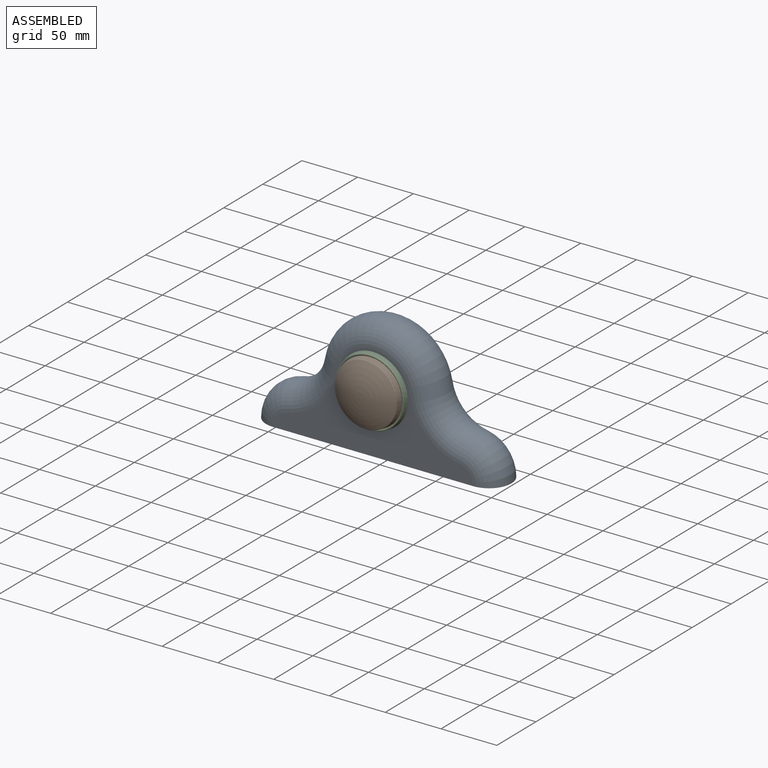
[diagram: assembled view]
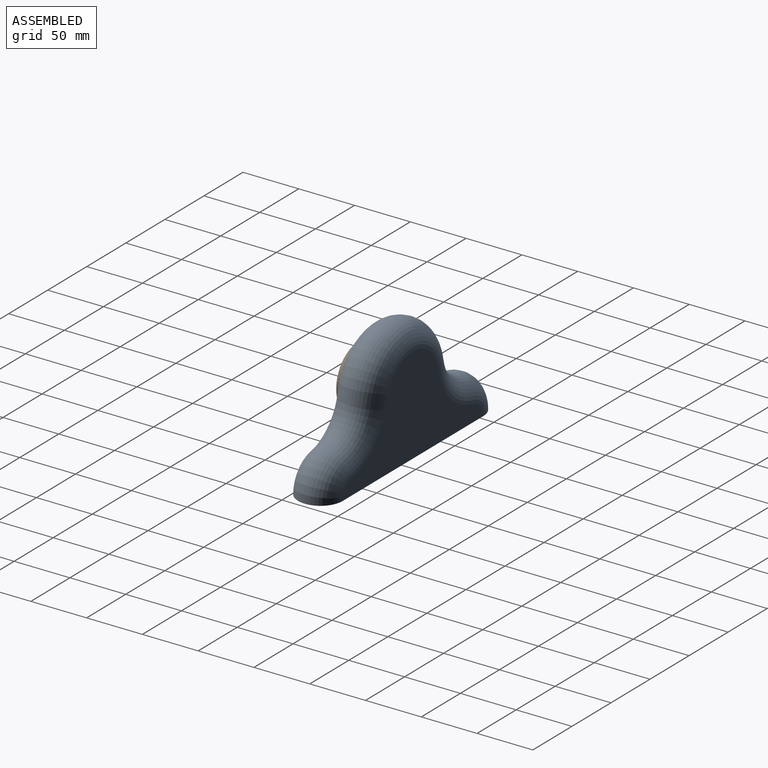
[diagram: assembled view, second angle]
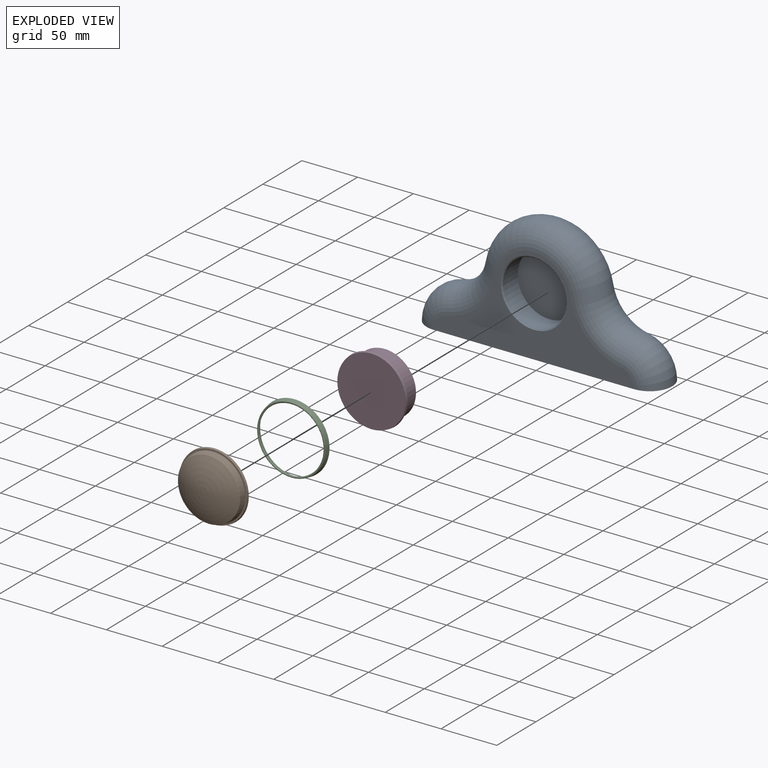
[diagram: exploded view]
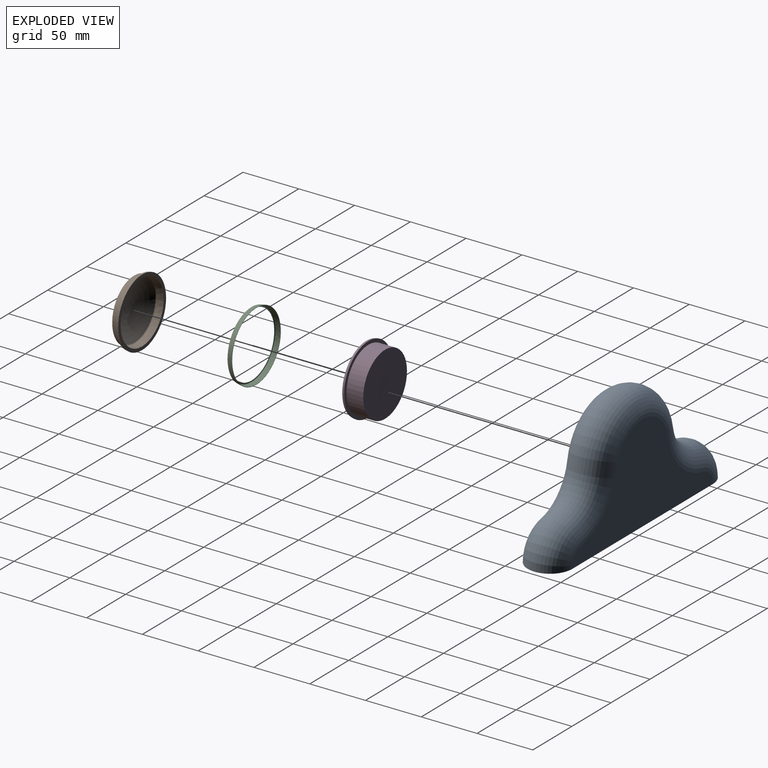
[diagram: exploded view, second angle]
ASSEMBLY  parts=4 mates=3
PART A: 11 faces, bbox 220x40x116.3 mm
  f0: torus R=54.98mm, axis (0,-1,0), area 3243.2mm2, adj f2,f3,f5,f6
  f1: torus R=14.98mm, axis (0,1,0), area 2431.3mm2, adj f4,f5,f6,f7
  f2: torus R=14.98mm, axis (0,1,0), area 2431.3mm2, adj f0,f5,f6,f7
  f3: torus R=33.53mm, axis (0,1,0), area 8117.3mm2, adj f0,f4,f5,f6
  f4: torus R=54.98mm, axis (0,-1,0), area 3243.2mm2, adj f1,f3,f5,f6
  f5: plane 180x87.06mm, normal (0,-1,0), area 5290.9mm2, adj f0,f1,f2,f3,f4,f7,f10
  f6: plane 180x87.06mm, normal (0,1,0), area 8024.8mm2, adj f0,f1,f2,f3,f4,f7
  f7: plane 220x40mm, normal (0,0,-1), area 8456.6mm2, adj f1,f2,f5,f6
  f8: cylinder r=28.5mm len=57mm, axis (0,-1,0), area 3402.3mm2, adj f9,f10
  f9: plane 57x57mm, normal (0,-1,0), area 2551.8mm2, adj f8
  f10: cone r=29.5mm half-angle=45deg, axis (0,-1,0), area 257.7mm2, adj f5,f8
PART B: 9 faces, bbox 61.3x15x61.3 mm
  f0: sphere r=55mm, area 2532.6mm2, adj f1
  f1: torus R=26.93mm, axis (0,-1,0), area 152.3mm2, adj f0,f2
  f2: cone r=28.79mm half-angle=10deg, axis (0,1,0), area 900.6mm2, adj f1,f3
  f3: plane 60.59x60.59mm, normal (0,-1,0), area 278.5mm2, adj f2,f4
  f4: cone r=30.65mm half-angle=10deg, axis (0,1,0), area 388.8mm2, adj f3,f5
  f5: plane 61.29x61.29mm, normal (0,1,0), area 553.4mm2, adj f4,f6
  f6: cone r=27.62mm half-angle=10deg, axis (0,1,0), area 1040.9mm2, adj f5,f7
  f7: torus R=25.58mm, axis (0,-1,0), area 147mm2, adj f6,f8
  f8: sphere r=53.5mm, area 2278.7mm2, adj f7
PART C: 10 faces, bbox 62.6x4.7x62.6 mm
  f0: plane 60.09x60.09mm, normal (0,1,0), area 93.6mm2, adj f1,f9
  f1: cone r=29.55mm half-angle=45deg, axis (0,-1,0), area 108.6mm2, adj f0,f2
  f2: plane 58.26x58.26mm, normal (0,1,0), area 54.6mm2, adj f1,f3
  f3: cone r=29.54mm half-angle=45deg, axis (0,-1,0), area 183.4mm2, adj f2,f4
  f4: plane 60.47x60.47mm, normal (0,-1,0), area 131.5mm2, adj f3,f5
  f5: cone r=30.52mm half-angle=45deg, axis (0,1,0), area 76.3mm2, adj f4,f6
  f6: cone r=30.52mm half-angle=10deg, axis (0,1,0), area 872.5mm2, adj f5,f7
  f7: plane 62.6x62.6mm, normal (0,1,0), area 58.7mm2, adj f6,f8
  f8: cone r=31mm half-angle=10deg, axis (0,1,0), area 821.6mm2, adj f7,f9
  f9: cone r=30.26mm half-angle=45deg, axis (0,1,0), area 56.8mm2, adj f0,f8
PART D: 5 faces, bbox 62x17x62 mm
  f0: cylinder r=28mm len=56mm, axis (0,1,0), area 2638.9mm2, adj f1,f4
  f1: plane 56x56mm, normal (0,1,0), area 2463mm2, adj f0
  f2: plane 61.29x61.29mm, normal (0,-1,0), area 2950.8mm2, adj f3
  f3: cone r=31mm half-angle=10deg, axis (0,1,0), area 393.3mm2, adj f2,f4
  f4: plane 62x62mm, normal (0,1,0), area 556.1mm2, adj f0,f3
PLACE A t=(-57.58,-27.77,-76.83)mm
PLACE B t=(-57.58,-32.77,-23.3)mm
PLACE C t=(-57.58,-32.77,-23.3)mm
PLACE D t=(-57.58,-32.77,-23.3)mm
MATE cylindrical B.f1 <-> D.f0  axis (0,1,0) through (-57.58,-49.77,-23.3)mm
MATE cylindrical A.f3 <-> D.f0  axis (0,-1,0) through (-57.58,-47.77,-23.3)mm
MATE cylindrical C.f1 <-> D.f0  axis (0,1,0) through (-57.58,-47.77,-23.3)mm
